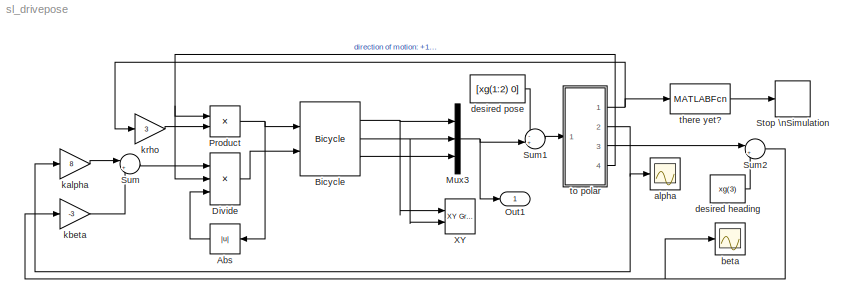
MODEL sl_drivepose
KIND model
BLOCK [Abs] Abs
  SID = 107
  SaturateOnIntegerOverflow = off
BLOCK [Reference] Bicycle  REF=roblocks/Dynamics/Bicycle  (lib defined in mdl_2a292b13c81b, mdl_69400f8cfe22, +12 more)
  L = 1
  Ports = [2, 3]
  SID = 41
  SourceBlock = roblocks/Dynamics/Bicycle
  accel = 1
  alim = 1
  handbrake = 0
  vlim = 1
  x0 = x0
BLOCK [Product] Divide
  InputSameDT = off
  Inputs = **/
  OutDataTypeStr = Inherit: Inherit via internal rule
  Ports = [3, 1]
  RndMeth = Floor
  SID = 103
  SaturateOnIntegerOverflow = off
BLOCK [Mux] Mux3
  DisplayOption = bar
  Inputs = 3
  Ports = [3, 1]
  SID = 18
BLOCK [Outport] Out1
  IconDisplay = Port number
  SID = 37
BLOCK [Product] Product
  InputSameDT = off
  OutDataTypeStr = Inherit: Inherit via internal rule
  Ports = [2, 1]
  SID = 83
  SaturateOnIntegerOverflow = off
BLOCK [Stop] Stop \nSimulation
  SID = 95
BLOCK [Sum] Sum
  IconShape = round
  InputSameDT = off
  Inputs = |++
  OutDataTypeStr = Inherit: Inherit via internal rule
  Ports = [2, 1]
  SID = 20
  SaturateOnIntegerOverflow = off
BLOCK [Sum] Sum1
  IconShape = round
  InputSameDT = off
  Inputs = -+|
  OutDataTypeStr = Inherit: Inherit via internal rule
  Ports = [2, 1]
  SID = 92
  SaturateOnIntegerOverflow = off
BLOCK [Sum] Sum2
  IconShape = round
  InputSameDT = off
  Inputs = |++
  OutDataTypeStr = Inherit: Inherit via internal rule
  Ports = [2, 1]
  SID = 99
  SaturateOnIntegerOverflow = off
BLOCK [Reference] XY  REF=simulink/Sinks/XY Graph
  Ports = [2]
  SID = 22
  SourceBlock = simulink/Sinks/XY Graph
  SourceType = XY scope.
  st = -1
  xmax = 10
  xmin = 0
  ymax = 10
  ymin = 0
BLOCK [Scope] alpha
  DataFormat = StructureWithTime
  Floating = off
  NumInputPorts = 1
  Ports = [1]
  SID = 105
  SampleTime = 0
  ShowLegends = off
BLOCK [Scope] beta
  DataFormat = StructureWithTime
  Floating = off
  NumInputPorts = 1
  Ports = [1]
  SID = 104
  SampleTime = 0
  SaveName = ScopeData2
  ShowLegends = off
BLOCK [Constant] desired heading
  SID = 100
  Value = xg(3)
BLOCK [Constant] desired pose
  SID = 93
  Value = [xg(1:2) 0]
BLOCK [Gain] kalpha
  Gain = 8
  OutDataTypeStr = Inherit: Inherit via internal rule
  ParamDataTypeStr = Inherit: Inherit via internal rule
  SID = 17
  SaturateOnIntegerOverflow = off
BLOCK [Gain] kbeta
  Gain = -3
  OutDataTypeStr = Inherit: Inherit via internal rule
  ParamDataTypeStr = Inherit: Inherit via internal rule
  SID = 60
  SaturateOnIntegerOverflow = off
BLOCK [Gain] krho
  Gain = 3
  OutDataTypeStr = Inherit: Inherit via internal rule
  ParamDataTypeStr = Inherit: Inherit via internal rule
  SID = 58
  SaturateOnIntegerOverflow = off
BLOCK [MATLABFcn] there yet?
  MATLABFcn = double(abs(u)<0.08)
  OutputSignalType = real
  Ports = [1, 1]
  SID = 96
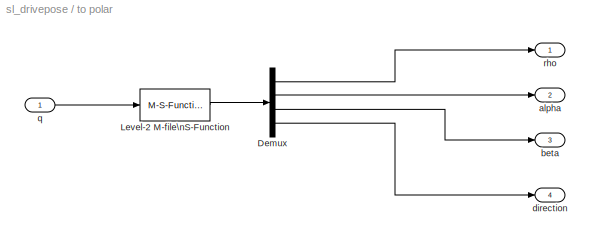
BLOCK [SubSystem] to polar
  FunctionWithSeparateData = off
  MaskHideContents = off
  MinAlgLoopOccurrences = off
  Opaque = off
  Ports = [1, 4]
  PropExecContextOutsideSubsystem = off
  RTWSystemCode = Auto
  RequestExecContextInheritance = off
  SID = 84
BLOCK [Demux] to polar/Demux
  DisplayOption = bar
  Ports = [1, 4]
  SID = 86
BLOCK [M-S-Function] to polar/Level-2 M-file\nS-Function
  FunctionName = polar_sfunc
  Ports = [1, 1]
  SID = 87
BLOCK [Outport] to polar/alpha
  IconDisplay = Port number
  Port = 2
  SID = 89
BLOCK [Outport] to polar/beta
  IconDisplay = Port number
  Port = 3
  SID = 90
BLOCK [Outport] to polar/direction
  IconDisplay = Port number
  Port = 4
  SID = 91
BLOCK [Inport] to polar/q
  IconDisplay = Port number
  SID = 85
BLOCK [Outport] to polar/rho
  IconDisplay = Port number
  SID = 88
LINE Abs:1 -> Divide:3
NET Bicycle:1 -> Mux3:1, XY:1
NET Bicycle:2 -> Mux3:2, XY:2
LINE Bicycle:3 -> Mux3:3
LINE Divide:1 -> Bicycle:2
NET Mux3:1 -> Out1:1, Sum1:2
NET Product:1 -> Abs:1, Bicycle:1
LINE Sum1:1 -> to polar:1
NET Sum2:1 -> beta:1, kbeta:1
LINE Sum:1 -> Divide:1
LINE desired heading:1 -> Sum2:2
LINE desired pose:1 -> Sum1:1
LINE kalpha:1 -> Sum:1
LINE kbeta:1 -> Sum:2
LINE krho:1 -> Product:2
LINE there yet?:1 -> Stop \nSimulation:1
LINE to polar/Demux:1 -> to polar/rho:1
LINE to polar/Demux:2 -> to polar/alpha:1
LINE to polar/Demux:3 -> to polar/beta:1
LINE to polar/Demux:4 -> to polar/direction:1
LINE to polar/Level-2 M-file\nS-Function:1 -> to polar/Demux:1
LINE to polar/q:1 -> to polar/Level-2 M-file\nS-Function:1
NET to polar:1 -> krho:1, there yet?:1
NET to polar:2 -> alpha:1, kalpha:1
LINE to polar:3 -> Sum2:1
NET to polar:4 -> Divide:2, Product:1
note: NET lines group one-source signal fan-out (src -> all destinations, sorted); 1:1 wires keep LINE
